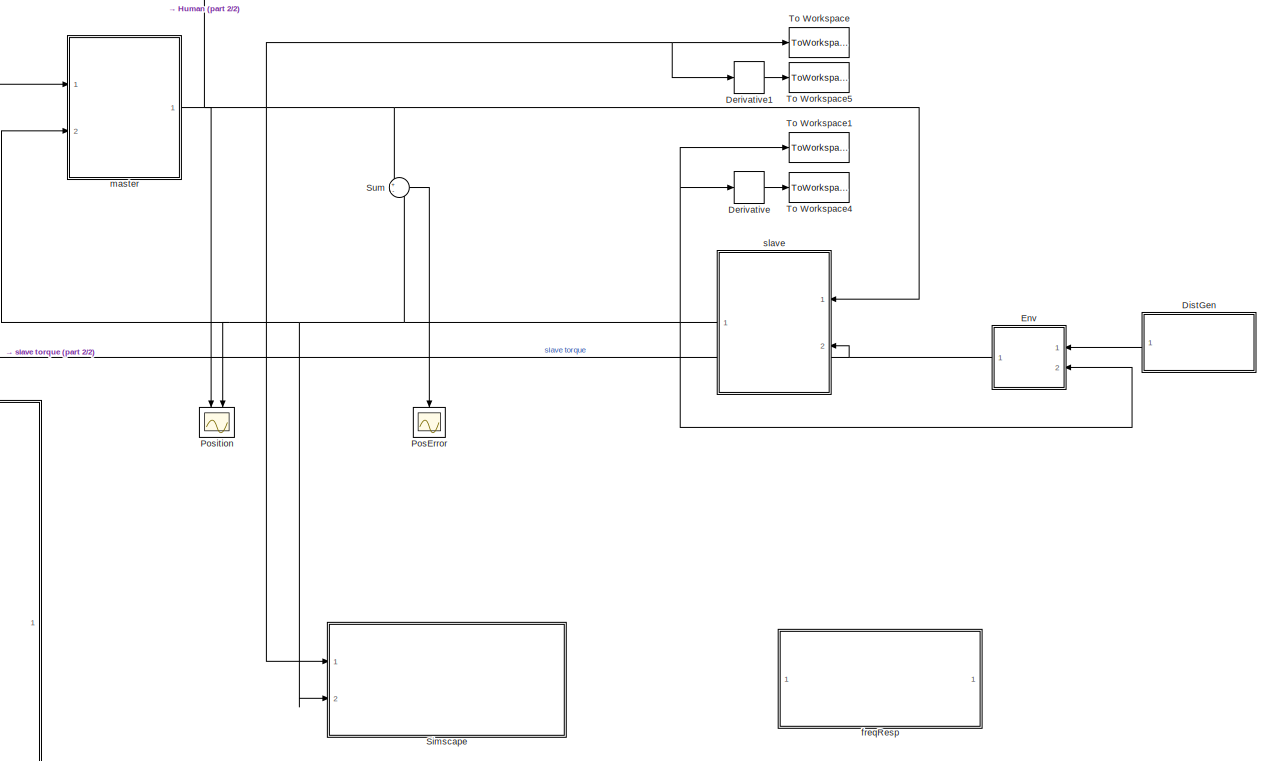
[diagram: root canvas - part 1/2, center side, full height]
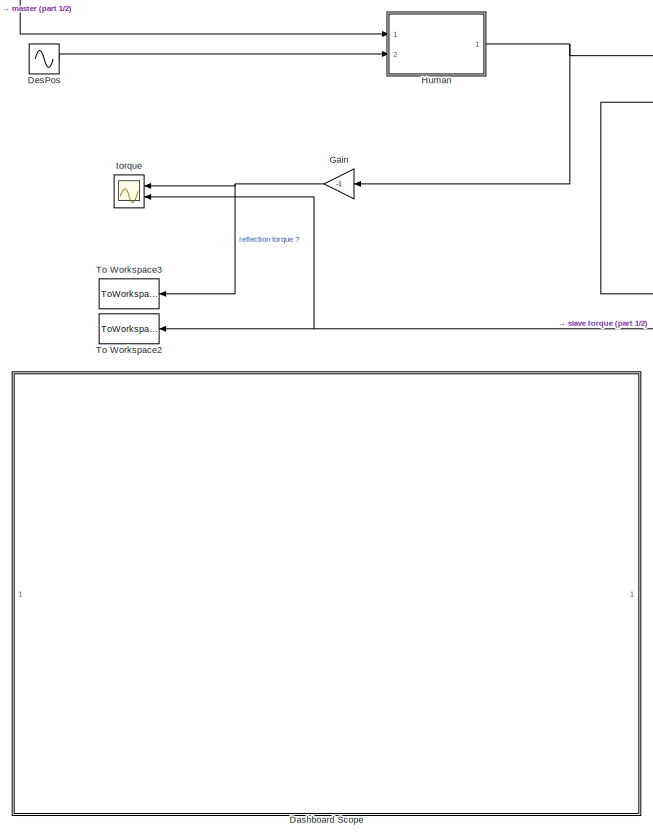
[diagram: root canvas - part 2/2, left side, full height]
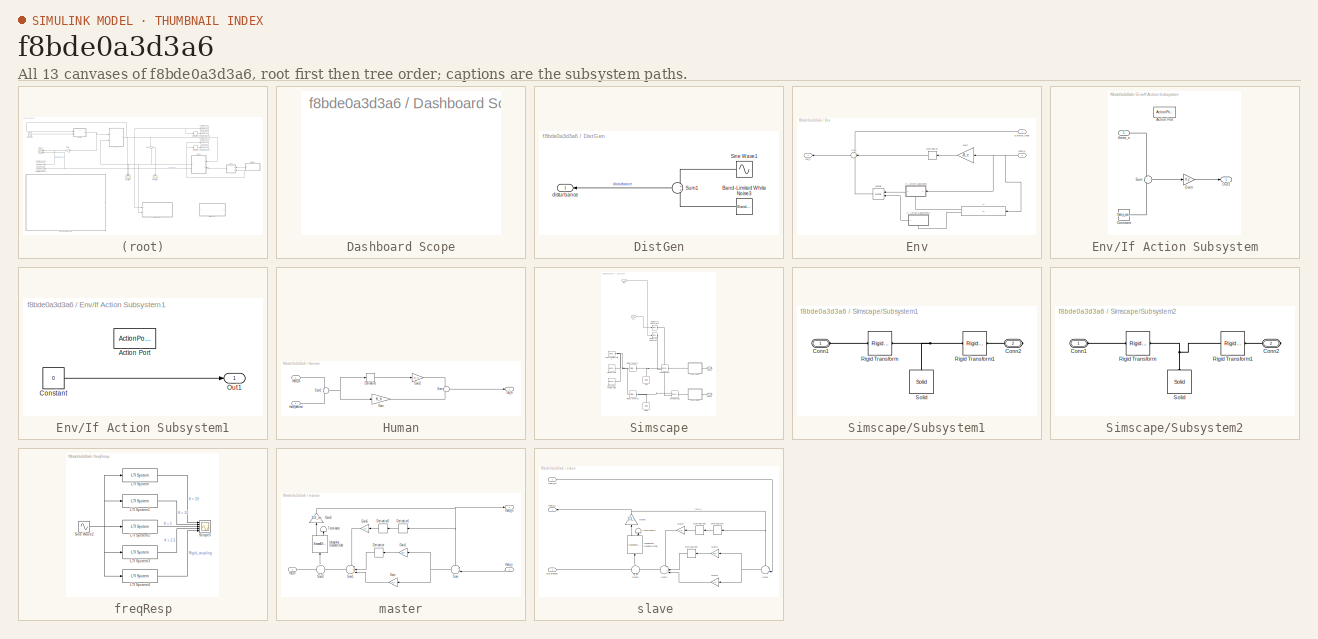
[diagram: thumbnail index - all 13 canvases of the model, root first then tree order]
MODEL slx_f8bde0a3d3a6
KIND model
CONFIG AbsTol = auto
CONFIG EnableMultiTasking = off
CONFIG FixedStep = auto
CONFIG MaxStep = auto
CONFIG MinStep = auto
CONFIG RelTol = 1e-3
CONFIG SampleTimeConstraint = Unconstrained
CONFIG Solver = ode45
CONFIG SolverName = ode45
CONFIG StartTime = 0.0
CONFIG StopTime = 10
BLOCK [SubSystem] Dashboard Scope
  DialogController = hmiCreateDDGDialog
  IsWebBlock = on
  MaskHideContents = on
  Ports = []
  RequestExecContextInheritance = off
BLOCK [Derivative] Derivative
  CoefficientInTFapproximation = 0
BLOCK [Derivative] Derivative1
  CoefficientInTFapproximation = 0
BLOCK [Sin] DesPos
  Amplitude = 0.18
  Frequency = 0.11*(6.28)
  Ports = [0, 1]
  SampleTime = 0
BLOCK [SubSystem] DistGen
  Ports = [0, 1]
  RequestExecContextInheritance = off
BLOCK [Reference] DistGen/Band-Limited White Noise3  REF=simulink/Sources/Band-Limited
White Noise
  Ports = [0, 1]
  SourceBlock = simulink/Sources/Band-Limited\nWhite Noise
  SourceProductBaseCode = SL
  SourceProductName = Simulink
  SourceType = Band-Limited White Noise.
BLOCK [Sin] DistGen/Sine Wave1
  Amplitude = 0.015
  Frequency = 20*(6.28)
  Ports = [0, 1]
  SampleTime = 0
BLOCK [Sum] DistGen/Sum1
  IconShape = round
  InputSameDT = off
  OutDataTypeStr = Inherit: Inherit via internal rule
  Ports = [2, 1]
  SaturateOnIntegerOverflow = off
BLOCK [Outport] DistGen/disturbance
  IconDisplay = Port number
BLOCK [SubSystem] Env
  Ports = [2, 1]
  RequestExecContextInheritance = off
BLOCK [Derivative] Env/Derivative
  CoefficientInTFapproximation = 0
BLOCK [Inport] Env/External_input
  IconDisplay = Port number
BLOCK [Gain] Env/Gain
  Gain = -B_e
  OutDataTypeStr = Inherit: Inherit via internal rule
  ParamDataTypeStr = Inherit: Inherit via internal rule
  SaturateOnIntegerOverflow = off
BLOCK [If] Env/If
  IfExpression = u1 < theta_s_contact
  Ports = [1, 2]
BLOCK [SubSystem] Env/If Action Subsystem
  Ports = [1, 1, 0, 0, 0, 0, 0, 1]
  RequestExecContextInheritance = off
  TreatAsAtomicUnit = on
BLOCK [ActionPort] Env/If Action Subsystem/Action Port
  ActionType = then
BLOCK [Constant] Env/If Action Subsystem/Constant
  Value = theta_s_contact
BLOCK [Gain] Env/If Action Subsystem/Gain
  Gain = K_e
  OutDataTypeStr = Inherit: Inherit via internal rule
  ParamDataTypeStr = Inherit: Inherit via internal rule
  SaturateOnIntegerOverflow = off
BLOCK [Outport] Env/If Action Subsystem/Out1
  IconDisplay = Port number
BLOCK [Sum] Env/If Action Subsystem/Sum
  IconShape = round
  InputSameDT = off
  Inputs = +-
  OutDataTypeStr = Inherit: Inherit via internal rule
  Ports = [2, 1]
  SaturateOnIntegerOverflow = off
BLOCK [Inport] Env/If Action Subsystem/theta_s
  IconDisplay = Port number
BLOCK [SubSystem] Env/If Action Subsystem1
  Ports = [0, 1, 0, 0, 0, 0, 0, 1]
  RequestExecContextInheritance = off
  TreatAsAtomicUnit = on
BLOCK [ActionPort] Env/If Action Subsystem1/Action Port
  ActionType = else
BLOCK [Constant] Env/If Action Subsystem1/Constant
  Value = 0
BLOCK [Outport] Env/If Action Subsystem1/Out1
  IconDisplay = Port number
BLOCK [Merge] Env/Merge
  Ports = [2, 1]
BLOCK [Sum] Env/Sum
  IconShape = round
  InputSameDT = off
  Inputs = +++
  OutDataTypeStr = Inherit: Inherit via internal rule
  Ports = [3, 1]
  SaturateOnIntegerOverflow = off
BLOCK [Outport] Env/tau_s 
  IconDisplay = Port number
BLOCK [Inport] Env/theta_s
  IconDisplay = Port number
  Port = 2
BLOCK [Gain] Gain
  Gain = -1
  OutDataTypeStr = Inherit: Inherit via internal rule
  ParamDataTypeStr = Inherit: Inherit via internal rule
  SaturateOnIntegerOverflow = off
BLOCK [SubSystem] Human
  Ports = [2, 1]
  RequestExecContextInheritance = off
BLOCK [Derivative] Human/Derivative
  CoefficientInTFapproximation = 0
BLOCK [Gain] Human/Gain
  Gain = K_h
  OutDataTypeStr = Inherit: Inherit via internal rule
  ParamDataTypeStr = Inherit: Inherit via internal rule
  SaturateOnIntegerOverflow = off
BLOCK [Gain] Human/Gain2
  Gain = B_h
  OutDataTypeStr = Inherit: Inherit via internal rule
  ParamDataTypeStr = Inherit: Inherit via internal rule
  SaturateOnIntegerOverflow = off
BLOCK [Sum] Human/Sum
  IconShape = round
  InputSameDT = off
  Inputs = +|+
  OutDataTypeStr = Inherit: Inherit via internal rule
  Ports = [2, 1]
  SaturateOnIntegerOverflow = off
BLOCK [Sum] Human/Sum1
  IconShape = round
  InputSameDT = off
  Inputs = -|+
  OutDataTypeStr = Inherit: Inherit via internal rule
  Ports = [2, 1]
  SaturateOnIntegerOverflow = off
BLOCK [Outport] Human/tau_m
  IconDisplay = Port number
BLOCK [Inport] Human/theta_desired
  IconDisplay = Port number
  Port = 2
BLOCK [Inport] Human/theta_m
  IconDisplay = Port number
BLOCK [Scope] PosError
  Floating = off
  NumInputPorts = 1
  Ports = [1]
  ScopeSpecificationString = Simulink.scopes.TimeScopeBlockCfg('CurrentConfiguration', extmgr.ConfigurationSet(extmgr.Configuration('Core','General UI',true),extmgr.Configuration('Core','Source UI',true),extmgr.Configuration('Sources','WiredSimulink',true,'DataLoggingVariableName','ScopeData1'),extmgr.Configuration('Visuals','Time Domain',true,'SerializedDisplays',{struct('MinYLimReal','-0.10294','MaxYLimReal','0.03388','YLab...<+1391ch>
BLOCK [Scope] Position
  Floating = off
  NumInputPorts = 2
  Ports = [2]
  ScopeSpecificationString = Simulink.scopes.TimeScopeBlockCfg('CurrentConfiguration', extmgr.ConfigurationSet(extmgr.Configuration('Core','General UI',true),extmgr.Configuration('Core','Source UI',true),extmgr.Configuration('Sources','WiredSimulink',true,'DataLoggingVariableName','ScopeData1'),extmgr.Configuration('Visuals','Time Domain',true,'SerializedDisplays',{struct('MinYLimReal','-0.12728','MaxYLimReal','0.23632','YLab...<+1488ch>
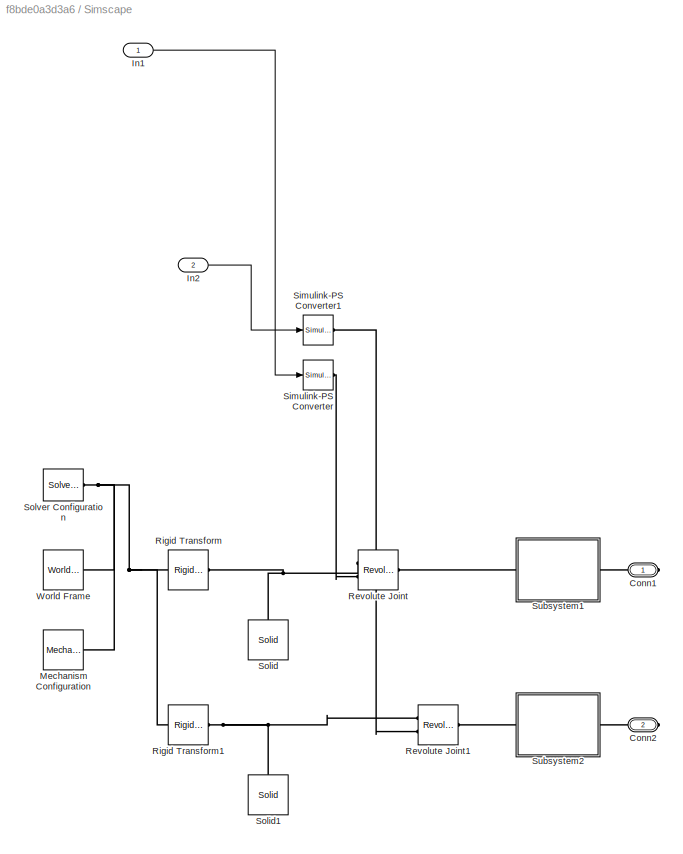
BLOCK [SubSystem] Simscape
  Ports = [2, 0, 0, 0, 0, 0, 2]
  RequestExecContextInheritance = off
BLOCK [PMIOPort] Simscape/Conn1
  Side = Right
BLOCK [PMIOPort] Simscape/Conn2
  Port = 2
  Side = Right
BLOCK [Inport] Simscape/In1
  IconDisplay = Port number
BLOCK [Inport] Simscape/In2
  IconDisplay = Port number
  Port = 2
BLOCK [Reference] Simscape/Mechanism Configuration  REF=sm_lib/Utilities/Mechanism
Configuration
  Ports = [0, 0, 0, 0, 0, 0, 1]
  SourceBlock = sm_lib/Utilities/Mechanism\nConfiguration
  SourceProductBaseCode = MS
  SourceProductName = Simscape Multibody
  SourceType = Mechanism\nConfiguration
BLOCK [Reference] Simscape/Revolute Joint  REF=sm_lib/Joints/Revolute Joint
  Ports = [0, 0, 0, 0, 0, 2, 1]
  SourceBlock = sm_lib/Joints/Revolute Joint
  SourceProductBaseCode = MS
  SourceProductName = Simscape Multibody
  SourceType = Revolute Joint
BLOCK [Reference] Simscape/Revolute Joint1  REF=sm_lib/Joints/Revolute Joint
  Ports = [0, 0, 0, 0, 0, 2, 1]
  SourceBlock = sm_lib/Joints/Revolute Joint
  SourceProductBaseCode = MS
  SourceProductName = Simscape Multibody
  SourceType = Revolute Joint
BLOCK [Reference] Simscape/Rigid Transform  REF=sm_lib/Frames and
Transforms/Rigid
Transform
  Ports = [0, 0, 0, 0, 0, 1, 1]
  SourceBlock = sm_lib/Frames and\nTransforms/Rigid\nTransform
  SourceProductBaseCode = MS
  SourceProductName = Simscape Multibody
  SourceType = Rigid\nTransform
BLOCK [Reference] Simscape/Rigid Transform1  REF=sm_lib/Frames and
Transforms/Rigid
Transform
  Ports = [0, 0, 0, 0, 0, 1, 1]
  SourceBlock = sm_lib/Frames and\nTransforms/Rigid\nTransform
  SourceProductBaseCode = MS
  SourceProductName = Simscape Multibody
  SourceType = Rigid\nTransform
BLOCK [Reference] Simscape/Simulink-PS Converter  REF=nesl_utility/Simulink-PS
Converter
  Ports = [1, 0, 0, 0, 0, 0, 1]
  SourceBlock = nesl_utility/Simulink-PS\nConverter
  SourceProductBaseCode = SS
  SourceProductName = Simscape
  SourceType = Simulink-PS\nConverter
BLOCK [Reference] Simscape/Simulink-PS Converter1  REF=nesl_utility/Simulink-PS
Converter
  Ports = [1, 0, 0, 0, 0, 0, 1]
  SourceBlock = nesl_utility/Simulink-PS\nConverter
  SourceProductBaseCode = SS
  SourceProductName = Simscape
  SourceType = Simulink-PS\nConverter
BLOCK [Reference] Simscape/Solid  REF=sm_lib/Body Elements/Solid
  Ports = [0, 0, 0, 0, 0, 0, 1]
  SourceBlock = sm_lib/Body Elements/Solid
  SourceProductBaseCode = MS
  SourceProductName = Simscape Multibody
  SourceType = Solid
BLOCK [Reference] Simscape/Solid1  REF=sm_lib/Body Elements/Solid
  Ports = [0, 0, 0, 0, 0, 0, 1]
  SourceBlock = sm_lib/Body Elements/Solid
  SourceProductBaseCode = MS
  SourceProductName = Simscape Multibody
  SourceType = Solid
BLOCK [Reference] Simscape/Solver Configuration  REF=nesl_utility/Solver
Configuration
  Ports = [0, 0, 0, 0, 0, 0, 1]
  SourceBlock = nesl_utility/Solver\nConfiguration
  SourceProductBaseCode = SS
  SourceProductName = Simscape
  SourceType = Solver\nConfiguration
BLOCK [SubSystem] Simscape/Subsystem1
  Ports = [0, 0, 0, 0, 0, 1, 1]
  RequestExecContextInheritance = off
BLOCK [PMIOPort] Simscape/Subsystem1/Conn1
  Side = Left
BLOCK [PMIOPort] Simscape/Subsystem1/Conn2
  Port = 2
  Side = Right
BLOCK [Reference] Simscape/Subsystem1/Rigid Transform  REF=sm_lib/Frames and
Transforms/Rigid
Transform
  Ports = [0, 0, 0, 0, 0, 1, 1]
  SourceBlock = sm_lib/Frames and\nTransforms/Rigid\nTransform
  SourceProductBaseCode = MS
  SourceProductName = Simscape Multibody
  SourceType = Rigid\nTransform
BLOCK [Reference] Simscape/Subsystem1/Rigid Transform1  REF=sm_lib/Frames and
Transforms/Rigid
Transform
  Ports = [0, 0, 0, 0, 0, 1, 1]
  SourceBlock = sm_lib/Frames and\nTransforms/Rigid\nTransform
  SourceProductBaseCode = MS
  SourceProductName = Simscape Multibody
  SourceType = Rigid\nTransform
BLOCK [Reference] Simscape/Subsystem1/Solid  REF=sm_lib/Body Elements/Solid
  Ports = [0, 0, 0, 0, 0, 0, 1]
  SourceBlock = sm_lib/Body Elements/Solid
  SourceProductBaseCode = MS
  SourceProductName = Simscape Multibody
  SourceType = Solid
BLOCK [SubSystem] Simscape/Subsystem2
  Ports = [0, 0, 0, 0, 0, 1, 1]
  RequestExecContextInheritance = off
BLOCK [PMIOPort] Simscape/Subsystem2/Conn1
  Side = Left
BLOCK [PMIOPort] Simscape/Subsystem2/Conn2
  Port = 2
  Side = Right
BLOCK [Reference] Simscape/Subsystem2/Rigid Transform  REF=sm_lib/Frames and
Transforms/Rigid
Transform
  Ports = [0, 0, 0, 0, 0, 1, 1]
  SourceBlock = sm_lib/Frames and\nTransforms/Rigid\nTransform
  SourceProductBaseCode = MS
  SourceProductName = Simscape Multibody
  SourceType = Rigid\nTransform
BLOCK [Reference] Simscape/Subsystem2/Rigid Transform1  REF=sm_lib/Frames and
Transforms/Rigid
Transform
  Ports = [0, 0, 0, 0, 0, 1, 1]
  SourceBlock = sm_lib/Frames and\nTransforms/Rigid\nTransform
  SourceProductBaseCode = MS
  SourceProductName = Simscape Multibody
  SourceType = Rigid\nTransform
BLOCK [Reference] Simscape/Subsystem2/Solid  REF=sm_lib/Body Elements/Solid
  Ports = [0, 0, 0, 0, 0, 0, 1]
  SourceBlock = sm_lib/Body Elements/Solid
  SourceProductBaseCode = MS
  SourceProductName = Simscape Multibody
  SourceType = Solid
BLOCK [Reference] Simscape/World Frame  REF=sm_lib/Frames and
Transforms/World Frame
  Ports = [0, 0, 0, 0, 0, 0, 1]
  SourceBlock = sm_lib/Frames and\nTransforms/World Frame
  SourceProductBaseCode = MS
  SourceProductName = Simscape Multibody
  SourceType = World Frame
BLOCK [Sum] Sum
  IconShape = round
  InputSameDT = off
  Inputs = +-
  OutDataTypeStr = Inherit: Inherit via internal rule
  Ports = [2, 1]
  SaturateOnIntegerOverflow = off
BLOCK [ToWorkspace] To Workspace
  FixptAsFi = on
  MaxDataPoints = inf
  Ports = [1]
  SampleTime = -1
  Save2DSignal = 3-D array (concatenate along third dimension)
  VariableName = theta_m
BLOCK [ToWorkspace] To Workspace1
  FixptAsFi = on
  MaxDataPoints = inf
  Ports = [1]
  SampleTime = -1
  Save2DSignal = 3-D array (concatenate along third dimension)
  VariableName = theta_s
BLOCK [ToWorkspace] To Workspace2
  FixptAsFi = on
  MaxDataPoints = inf
  Ports = [1]
  SampleTime = -1
  Save2DSignal = 3-D array (concatenate along third dimension)
  VariableName = tau_s
BLOCK [ToWorkspace] To Workspace3
  FixptAsFi = on
  MaxDataPoints = inf
  Ports = [1]
  SampleTime = -1
  Save2DSignal = 3-D array (concatenate along third dimension)
  VariableName = tau_m
BLOCK [ToWorkspace] To Workspace4
  FixptAsFi = on
  MaxDataPoints = inf
  Ports = [1]
  SampleTime = -1
  Save2DSignal = 3-D array (concatenate along third dimension)
  VariableName = theta_s_dot
BLOCK [ToWorkspace] To Workspace5
  FixptAsFi = on
  MaxDataPoints = inf
  Ports = [1]
  SampleTime = -1
  Save2DSignal = 3-D array (concatenate along third dimension)
  VariableName = theta_m_dot
BLOCK [SubSystem] freqResp
  Ports = []
  RequestExecContextInheritance = off
BLOCK [Reference] freqResp/LTI System  REF=cstblocks/LTI System
  Ports = [1, 1]
  SourceBlock = cstblocks/LTI System
  SourceProductBaseCode = CT
  SourceProductName = Control System Toolbox
  SourceType = LTI Block
BLOCK [Reference] freqResp/LTI System1  REF=cstblocks/LTI System
  Ports = [1, 1]
  SourceBlock = cstblocks/LTI System
  SourceProductBaseCode = CT
  SourceProductName = Control System Toolbox
  SourceType = LTI Block
BLOCK [Reference] freqResp/LTI System2  REF=cstblocks/LTI System
  Ports = [1, 1]
  SourceBlock = cstblocks/LTI System
  SourceProductBaseCode = CT
  SourceProductName = Control System Toolbox
  SourceType = LTI Block
BLOCK [Reference] freqResp/LTI System3  REF=cstblocks/LTI System
  Ports = [1, 1]
  SourceBlock = cstblocks/LTI System
  SourceProductBaseCode = CT
  SourceProductName = Control System Toolbox
  SourceType = LTI Block
BLOCK [Reference] freqResp/LTI System4  REF=cstblocks/LTI System
  Ports = [1, 1]
  SourceBlock = cstblocks/LTI System
  SourceProductBaseCode = CT
  SourceProductName = Control System Toolbox
  SourceType = LTI Block
BLOCK [Scope] freqResp/Scope5
  Floating = off
  NumInputPorts = 5
  Ports = [5]
  ScopeSpecificationString = Simulink.scopes.TimeScopeBlockCfg('CurrentConfiguration', extmgr.ConfigurationSet(extmgr.Configuration('Core','General UI',true,'FigureColor',[1 1 1]),extmgr.Configuration('Core','Source UI',true),extmgr.Configuration('Sources','WiredSimulink',true),extmgr.Configuration('Visuals','Time Domain',true,'SerializedDisplays',{struct('MinYLimReal','-0.00864','MaxYLimReal','0.0085','YLabelReal','','MinYLi...<+1587ch>
BLOCK [Sin] freqResp/Sine Wave2
  Amplitude = 0.1
  Frequency = 10*(6.28)
  Ports = [0, 1]
  SampleTime = 0
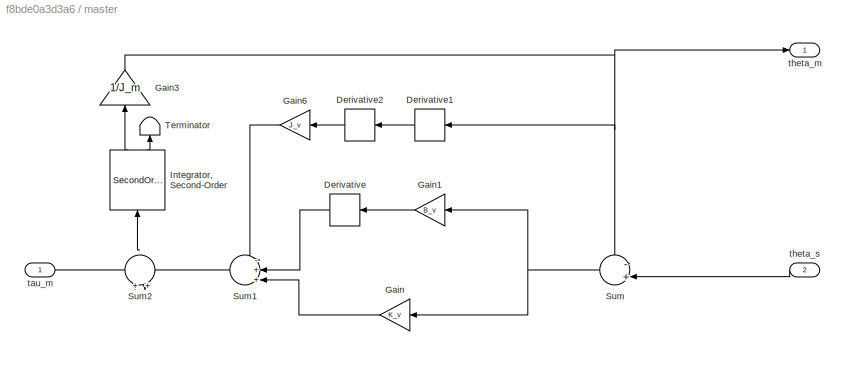
BLOCK [SubSystem] master
  Ports = [2, 1]
  RequestExecContextInheritance = off
BLOCK [Derivative] master/Derivative
  CoefficientInTFapproximation = 0
BLOCK [Derivative] master/Derivative1
  CoefficientInTFapproximation = 0
BLOCK [Derivative] master/Derivative2
  CoefficientInTFapproximation = 0
BLOCK [Gain] master/Gain
  Gain = K_v
  OutDataTypeStr = Inherit: Inherit via internal rule
  ParamDataTypeStr = Inherit: Inherit via internal rule
  SaturateOnIntegerOverflow = off
BLOCK [Gain] master/Gain1
  Gain = B_v
  OutDataTypeStr = Inherit: Inherit via internal rule
  ParamDataTypeStr = Inherit: Inherit via internal rule
  SaturateOnIntegerOverflow = off
BLOCK [Gain] master/Gain3
  Gain = 1/J_m
  OutDataTypeStr = Inherit: Inherit via internal rule
  ParamDataTypeStr = Inherit: Inherit via internal rule
  SaturateOnIntegerOverflow = off
BLOCK [Gain] master/Gain6
  Gain = J_v
  OutDataTypeStr = Inherit: Inherit via internal rule
  ParamDataTypeStr = Inherit: Inherit via internal rule
  SaturateOnIntegerOverflow = off
BLOCK [SecondOrderIntegrator] master/Integrator, Second-Order
  ICX = 0
  Ports = [1, 2]
BLOCK [Sum] master/Sum
  IconShape = round
  InputSameDT = off
  Inputs = -+|
  OutDataTypeStr = Inherit: Inherit via internal rule
  Ports = [2, 1]
  SaturateOnIntegerOverflow = off
BLOCK [Sum] master/Sum1
  IconShape = round
  InputSameDT = off
  Inputs = -++|
  OutDataTypeStr = Inherit: Inherit via internal rule
  Ports = [3, 1]
  SaturateOnIntegerOverflow = off
BLOCK [Sum] master/Sum2
  IconShape = round
  InputSameDT = off
  Inputs = +|+
  OutDataTypeStr = Inherit: Inherit via internal rule
  Ports = [2, 1]
  SaturateOnIntegerOverflow = off
BLOCK [Terminator] master/Terminator
BLOCK [Inport] master/tau_m
  IconDisplay = Port number
BLOCK [Outport] master/theta_m
  IconDisplay = Port number
BLOCK [Inport] master/theta_s
  IconDisplay = Port number
  Port = 2
BLOCK [SubSystem] slave 
  Ports = [2, 1]
  RequestExecContextInheritance = off
BLOCK [Derivative] slave /Derivative3
  CoefficientInTFapproximation = 0
BLOCK [Derivative] slave /Derivative4
  CoefficientInTFapproximation = 0
BLOCK [Derivative] slave /Derivative5
  CoefficientInTFapproximation = 0
BLOCK [Gain] slave /Gain3
  Gain = K_v
  OutDataTypeStr = Inherit: Inherit via internal rule
  ParamDataTypeStr = Inherit: Inherit via internal rule
  SaturateOnIntegerOverflow = off
BLOCK [Gain] slave /Gain4
  Gain = B_v
  OutDataTypeStr = Inherit: Inherit via internal rule
  ParamDataTypeStr = Inherit: Inherit via internal rule
  SaturateOnIntegerOverflow = off
BLOCK [Gain] slave /Gain5
  Gain = 1/J_s
  OutDataTypeStr = Inherit: Inherit via internal rule
  ParamDataTypeStr = Inherit: Inherit via internal rule
  SaturateOnIntegerOverflow = off
BLOCK [Gain] slave /Gain7
  Gain = J_v
  OutDataTypeStr = Inherit: Inherit via internal rule
  ParamDataTypeStr = Inherit: Inherit via internal rule
  SaturateOnIntegerOverflow = off
BLOCK [SecondOrderIntegrator] slave /Integrator, Second-Order
  ICX = 0
  Ports = [1, 2]
BLOCK [Sum] slave /Sum3
  IconShape = round
  InputSameDT = off
  Inputs = -+|
  OutDataTypeStr = Inherit: Inherit via internal rule
  Ports = [2, 1]
  SaturateOnIntegerOverflow = off
BLOCK [Sum] slave /Sum4
  IconShape = round
  InputSameDT = off
  Inputs = -++|
  OutDataTypeStr = Inherit: Inherit via internal rule
  Ports = [3, 1]
  SaturateOnIntegerOverflow = off
BLOCK [Sum] slave /Sum5
  IconShape = round
  InputSameDT = off
  Inputs = -|+
  OutDataTypeStr = Inherit: Inherit via internal rule
  Ports = [2, 1]
  SaturateOnIntegerOverflow = off
BLOCK [Terminator] slave /Terminator1
BLOCK [Inport] slave /disturbance
  IconDisplay = Port number
  Port = 2
BLOCK [Inport] slave /theta_m 
  IconDisplay = Port number
BLOCK [Outport] slave /theta_s
  IconDisplay = Port number
BLOCK [Scope] torque
  Floating = off
  NumInputPorts = 2
  Ports = [2]
  ScopeSpecificationString = Simulink.scopes.TimeScopeBlockCfg('CurrentConfiguration', extmgr.ConfigurationSet(extmgr.Configuration('Core','General UI',true),extmgr.Configuration('Core','Source UI',true),extmgr.Configuration('Sources','WiredSimulink',true,'DataLoggingVariableName','ScopeData2'),extmgr.Configuration('Visuals','Time Domain',true,'SerializedDisplays',{struct('MinYLimReal','-4.0665','MaxYLimReal','3.78018','YLabe...<+1458ch>
LINE Derivative1:1 -> To Workspace5:1
LINE Derivative:1 -> To Workspace4:1
LINE DesPos:1 -> Human:2
LINE DistGen/Band-Limited White Noise3:1 -> DistGen/Sum1:2
LINE DistGen/Sine Wave1:1 -> DistGen/Sum1:1
LINE DistGen/Sum1:1 -> DistGen/disturbance:1
LINE DistGen:1 -> Env:1
LINE Env/Derivative:1 -> Env/Sum:2
LINE Env/External_input:1 -> Env/Sum:1
LINE Env/Gain:1 -> Env/Derivative:1
LINE Env/If Action Subsystem/Constant:1 -> Env/If Action Subsystem/Sum:2
LINE Env/If Action Subsystem/Gain:1 -> Env/If Action Subsystem/Out1:1
LINE Env/If Action Subsystem/Sum:1 -> Env/If Action Subsystem/Gain:1
LINE Env/If Action Subsystem/theta_s:1 -> Env/If Action Subsystem/Sum:1
LINE Env/If Action Subsystem1/Constant:1 -> Env/If Action Subsystem1/Out1:1
LINE Env/If Action Subsystem1:1 -> Env/Merge:2
LINE Env/If Action Subsystem:1 -> Env/Merge:1
LINE Env/If:1 -> Env/If Action Subsystem:ifaction
LINE Env/If:2 -> Env/If Action Subsystem1:ifaction
LINE Env/Merge:1 -> Env/Sum:3
LINE Env/Sum:1 -> Env/tau_s :1
NET Env/theta_s:1 -> Env/Gain:1, Env/If Action Subsystem:1, Env/If:1
NET Env:1 -> To Workspace2:1, slave :2, torque:2
NET Gain:1 -> To Workspace3:1, torque:1
LINE Human/Derivative:1 -> Human/Gain2:1
LINE Human/Gain2:1 -> Human/Sum:1
LINE Human/Gain:1 -> Human/Sum:2
NET Human/Sum1:1 -> Human/Derivative:1, Human/Gain:1
LINE Human/Sum:1 -> Human/tau_m:1
LINE Human/theta_desired:1 -> Human/Sum1:2
LINE Human/theta_m:1 -> Human/Sum1:1
NET Human:1 -> Gain:1, master:1
LINE Simscape/In1:1 -> Simscape/Simulink-PS Converter:1
LINE Simscape/In2:1 -> Simscape/Simulink-PS Converter1:1
LINE Sum:1 -> PosError:1
LINE freqResp/LTI System1:1 -> freqResp/Scope5:2
LINE freqResp/LTI System2:1 -> freqResp/Scope5:3
LINE freqResp/LTI System3:1 -> freqResp/Scope5:4
LINE freqResp/LTI System4:1 -> freqResp/Scope5:5
LINE freqResp/LTI System:1 -> freqResp/Scope5:1
NET freqResp/Sine Wave2:1 -> freqResp/LTI System1:1, freqResp/LTI System2:1, freqResp/LTI System3:1, freqResp/LTI System4:1, freqResp/LTI System:1
LINE master/Derivative1:1 -> master/Derivative2:1
LINE master/Derivative2:1 -> master/Gain6:1
LINE master/Derivative:1 -> master/Sum1:2
LINE master/Gain1:1 -> master/Derivative:1
NET master/Gain3:1 -> master/Derivative1:1, master/Sum:1, master/theta_m:1
LINE master/Gain6:1 -> master/Sum1:1
LINE master/Gain:1 -> master/Sum1:3
LINE master/Integrator, Second-Order:1 -> master/Gain3:1
LINE master/Integrator, Second-Order:2 -> master/Terminator:1
LINE master/Sum1:1 -> master/Sum2:2
LINE master/Sum2:1 -> master/Integrator, Second-Order:1
NET master/Sum:1 -> master/Gain1:1, master/Gain:1
LINE master/tau_m:1 -> master/Sum2:1
LINE master/theta_s:1 -> master/Sum:2
NET master:1 -> Derivative1:1, Human:1, Position:1, Simscape:1, Sum:1, To Workspace:1, slave :1
LINE slave /Derivative3:1 -> slave /Sum4:2
LINE slave /Derivative4:1 -> slave /Derivative5:1
LINE slave /Derivative5:1 -> slave /Gain7:1
LINE slave /Gain3:1 -> slave /Sum4:3
LINE slave /Gain4:1 -> slave /Derivative3:1
NET slave /Gain5:1 -> slave /Derivative4:1, slave /Sum3:1, slave /theta_s:1
LINE slave /Gain7:1 -> slave /Sum4:1
LINE slave /Integrator, Second-Order:1 -> slave /Gain5:1
LINE slave /Integrator, Second-Order:2 -> slave /Terminator1:1
NET slave /Sum3:1 -> slave /Gain3:1, slave /Gain4:1
LINE slave /Sum4:1 -> slave /Sum5:2
LINE slave /Sum5:1 -> slave /Integrator, Second-Order:1
LINE slave /disturbance:1 -> slave /Sum5:1
LINE slave /theta_m :1 -> slave /Sum3:2
NET slave :1 -> Derivative:1, Env:2, Position:2, Simscape:2, Sum:2, To Workspace1:1, master:2
PLINE Simscape/Conn1:RConn1 -- Simscape/Subsystem1:RConn1
PLINE Simscape/Conn2:RConn1 -- Simscape/Subsystem2:RConn1
PNET net1: Simscape/Mechanism Configuration:RConn1 -- Simscape/Rigid Transform1:LConn1 -- Simscape/Rigid Transform:LConn1 -- Simscape/Solver Configuration:RConn1 -- Simscape/World Frame:RConn1
PNET net2: Simscape/Revolute Joint1:LConn1 -- Simscape/Rigid Transform1:RConn1 -- Simscape/Solid1:RConn1
PLINE Simscape/Revolute Joint1:LConn2 -- Simscape/Simulink-PS Converter1:RConn1
PLINE Simscape/Revolute Joint1:RConn1 -- Simscape/Subsystem2:LConn1
PNET net3: Simscape/Revolute Joint:LConn1 -- Simscape/Rigid Transform:RConn1 -- Simscape/Solid:RConn1
PLINE Simscape/Revolute Joint:LConn2 -- Simscape/Simulink-PS Converter:RConn1
PLINE Simscape/Revolute Joint:RConn1 -- Simscape/Subsystem1:LConn1
PLINE Simscape/Subsystem1/Conn1:RConn1 -- Simscape/Subsystem1/Rigid Transform:LConn1
PLINE Simscape/Subsystem1/Conn2:RConn1 -- Simscape/Subsystem1/Rigid Transform1:RConn1
PNET net4: Simscape/Subsystem1/Rigid Transform1:LConn1 -- Simscape/Subsystem1/Rigid Transform:RConn1 -- Simscape/Subsystem1/Solid:RConn1
PLINE Simscape/Subsystem2/Conn1:RConn1 -- Simscape/Subsystem2/Rigid Transform:LConn1
PLINE Simscape/Subsystem2/Conn2:RConn1 -- Simscape/Subsystem2/Rigid Transform1:RConn1
PNET net5: Simscape/Subsystem2/Rigid Transform1:LConn1 -- Simscape/Subsystem2/Rigid Transform:RConn1 -- Simscape/Subsystem2/Solid:RConn1
note: NET lines group one-source signal fan-out (src -> all destinations, sorted); 1:1 wires keep LINE; PNET lines group multi-terminal physical nets as a canonical sorted terminal list (undirected conserving connections); 2-terminal nets keep the pairwise PLINE form
